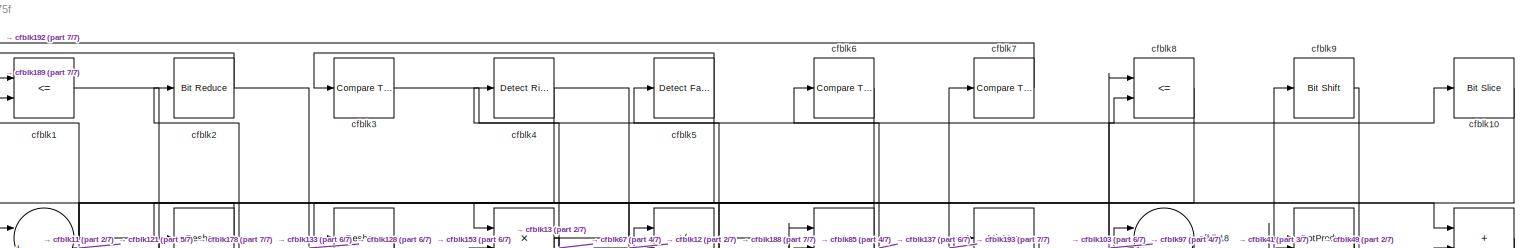
[diagram: root canvas - part 1/7, full width, top band]
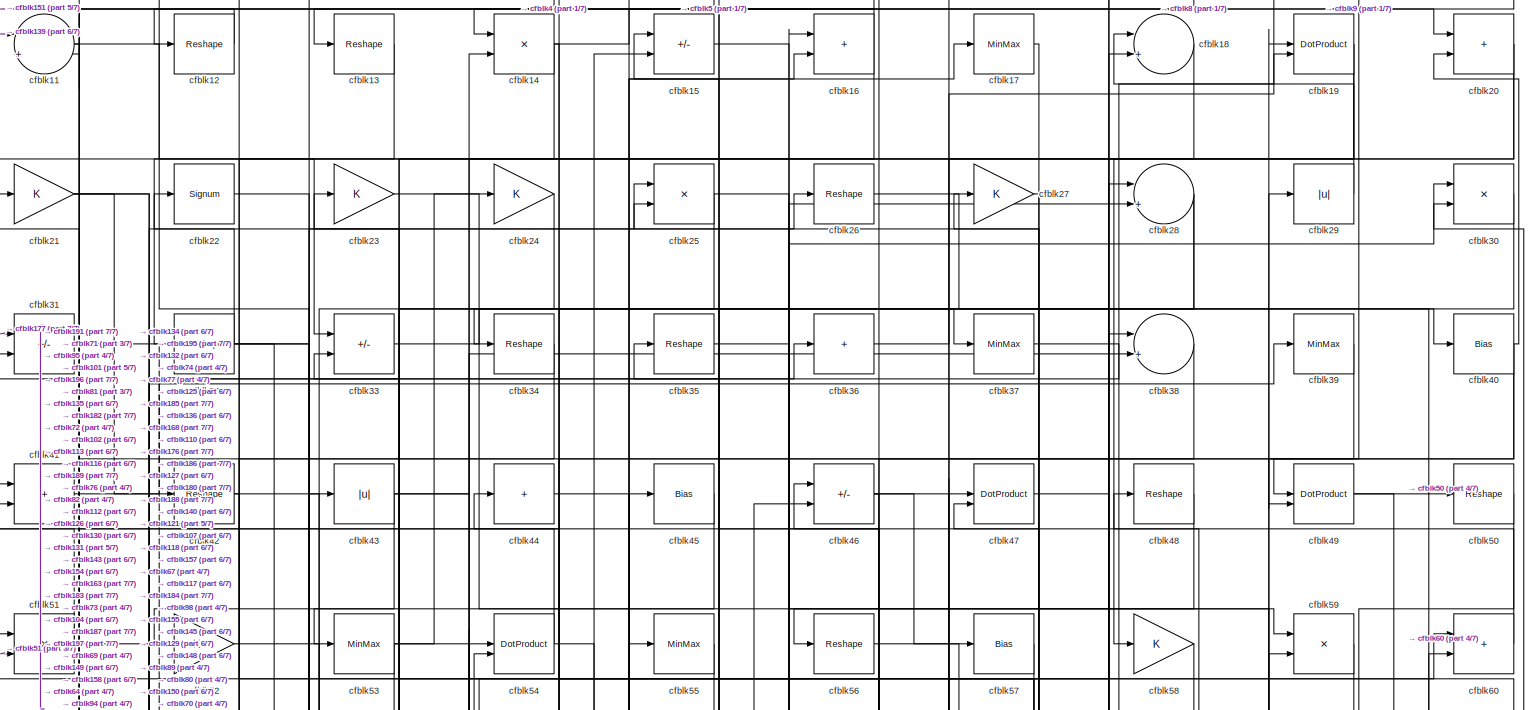
[diagram: root canvas - part 2/7, full width, top band]
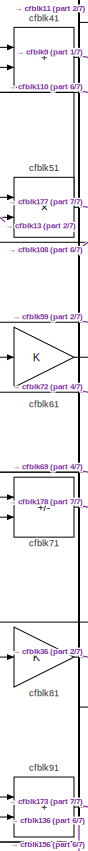
[diagram: root canvas - part 3/7, middle left region]
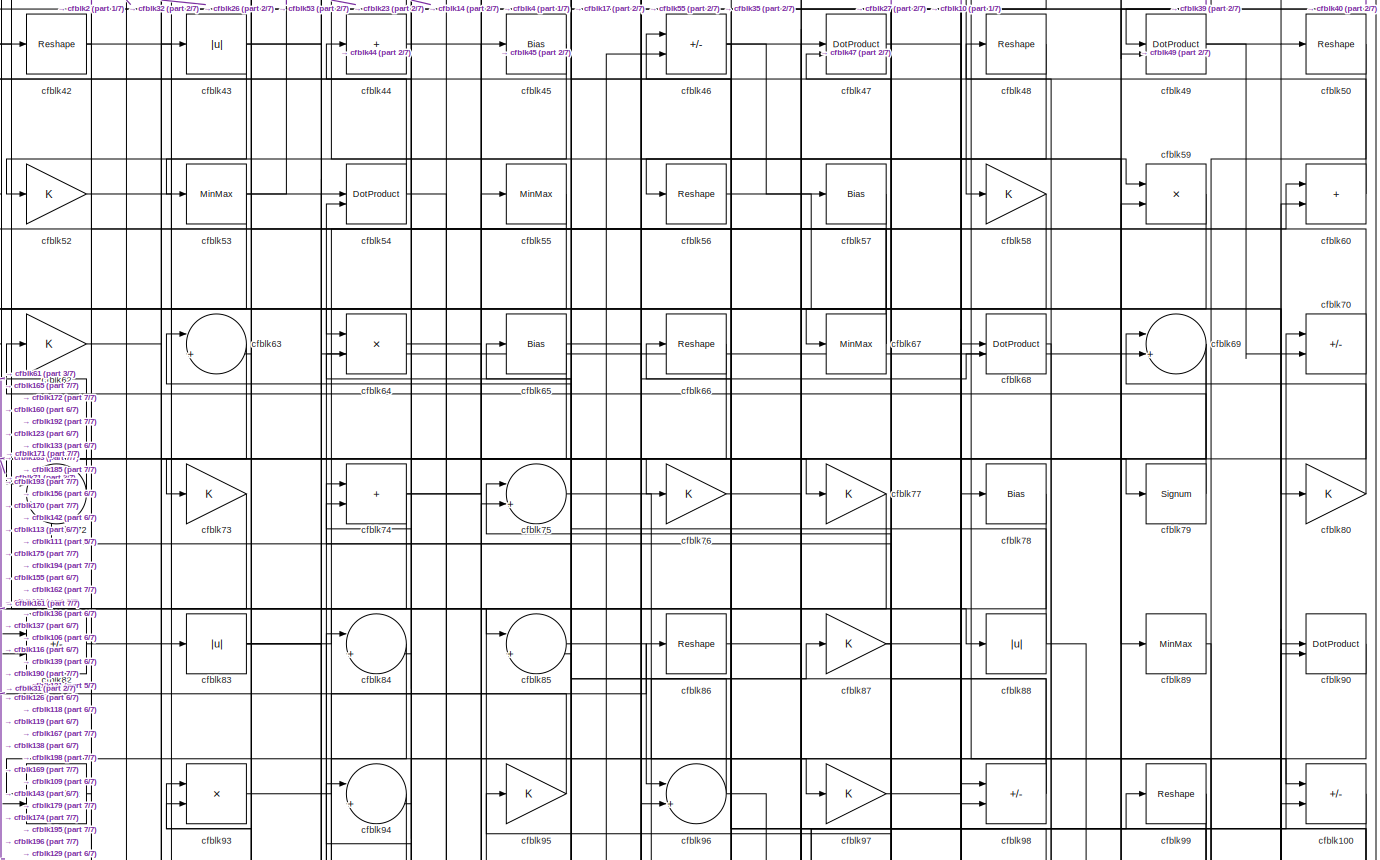
[diagram: root canvas - part 4/7, full width, middle band]
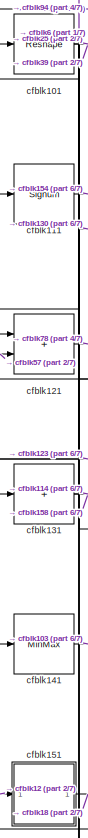
[diagram: root canvas - part 5/7, middle left region]
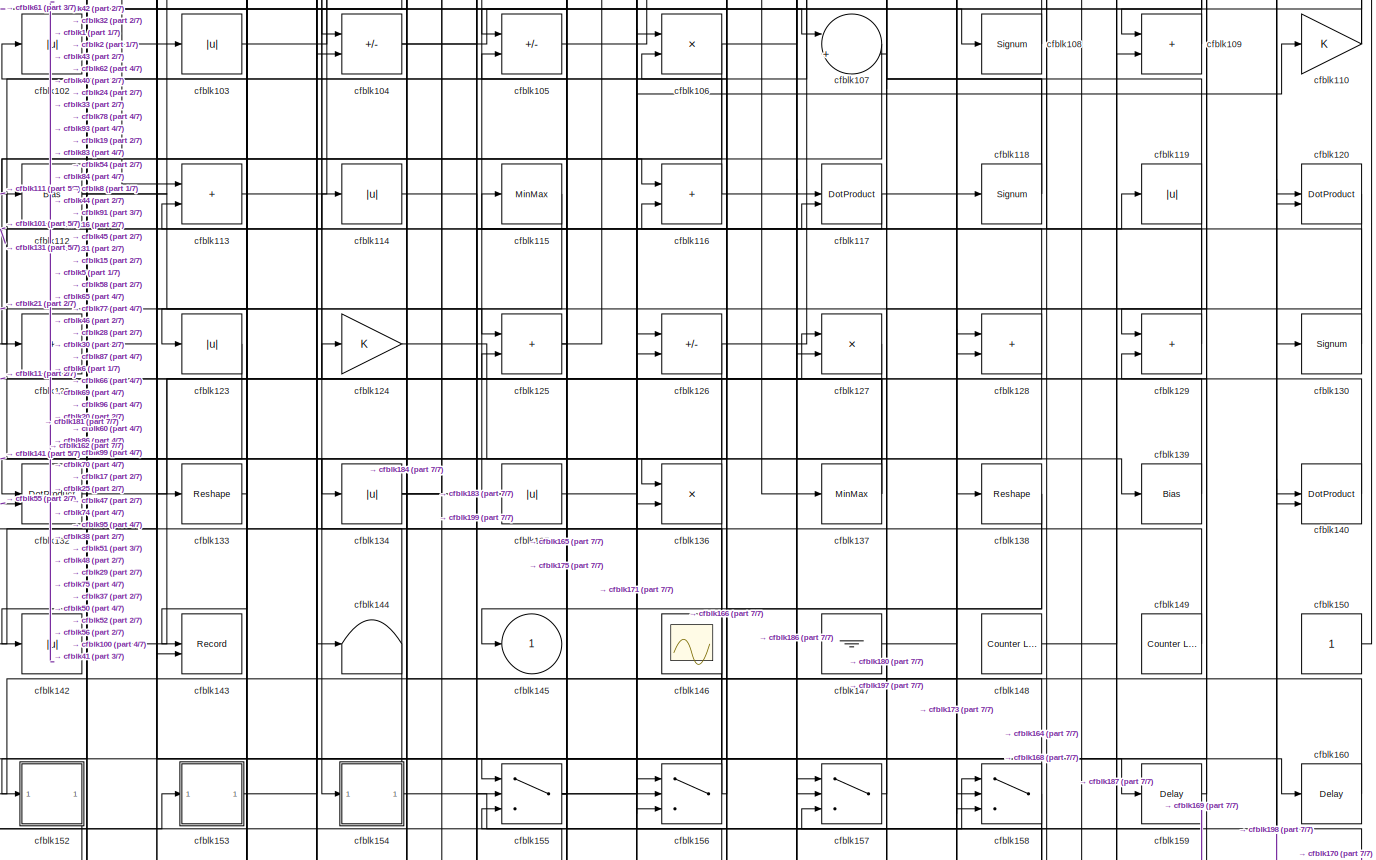
[diagram: root canvas - part 6/7, full width, middle band]
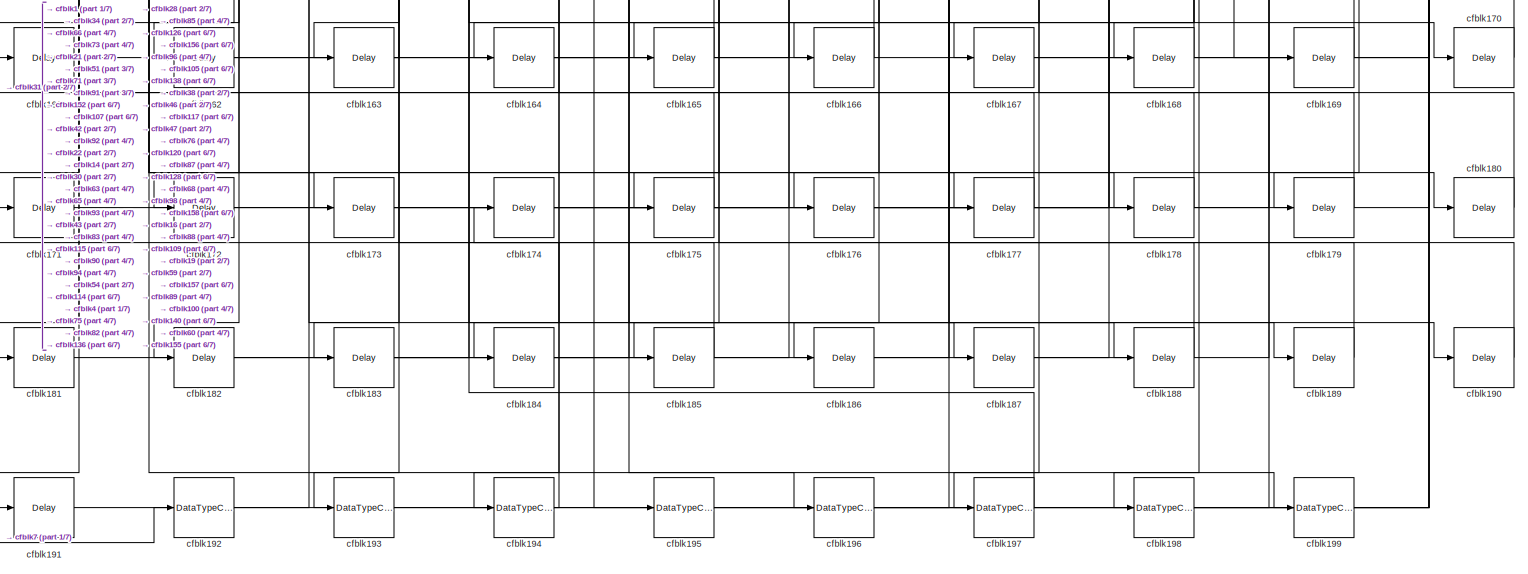
[diagram: root canvas - part 7/7, full width, bottom band]
MODEL slx_20db04f2175f
KIND model
CONFIG AbsTol = auto
CONFIG EnableMultiTasking = off
CONFIG FixedStep = auto
CONFIG MaxStep = auto
CONFIG MinStep = auto
CONFIG RelTol = 1e-3
CONFIG SampleTimeConstraint = Unconstrained
CONFIG SolverName = VariableStepAuto
CONFIG StartTime = 0.0
CONFIG StopTime = 10.0
BLOCK [RelationalOperator] cfblk1
  InputSameDT = off
  Operator = <=
  OutDataTypeStr = boolean
BLOCK [Reference] cfblk10  REF=hdlsllib/Logic and Bit
Operations/Bit Slice
  SourceBlock = hdlsllib/Logic and Bit\nOperations/Bit Slice
  SourceType = Bit Slice
BLOCK [Sum] cfblk100
  IconShape = rectangular
  Inputs = +-
BLOCK [Reshape] cfblk101
BLOCK [Abs] cfblk102
  SaturateOnIntegerOverflow = off
BLOCK [Abs] cfblk103
  SaturateOnIntegerOverflow = off
BLOCK [Sum] cfblk104
  IconShape = rectangular
  Inputs = +-
BLOCK [Sum] cfblk105
  IconShape = rectangular
  Inputs = +-
BLOCK [Product] cfblk106
  Inputs = */
  RndMeth = Zero
  SaturateOnIntegerOverflow = on
BLOCK [Sum] cfblk107
  Inputs = |++
BLOCK [Signum] cfblk108
BLOCK [Sum] cfblk109
  IconShape = rectangular
BLOCK [Sum] cfblk11
  Inputs = |++
BLOCK [Gain] cfblk110
BLOCK [Signum] cfblk111
BLOCK [Bias] cfblk112
  Bias = 0.0
  SaturateOnIntegerOverflow = off
BLOCK [Sum] cfblk113
  IconShape = rectangular
BLOCK [Abs] cfblk114
  SaturateOnIntegerOverflow = off
BLOCK [MinMax] cfblk115
BLOCK [Sum] cfblk116
  IconShape = rectangular
BLOCK [DotProduct] cfblk117
  OutDataTypeStr = Inherit: Inherit via internal rule
BLOCK [Signum] cfblk118
BLOCK [Abs] cfblk119
  SaturateOnIntegerOverflow = off
BLOCK [Reshape] cfblk12
BLOCK [DotProduct] cfblk120
  OutDataTypeStr = Inherit: Inherit via internal rule
BLOCK [Sum] cfblk121
  IconShape = rectangular
BLOCK [Sum] cfblk122
  IconShape = rectangular
  Inputs = +
BLOCK [Abs] cfblk123
  SaturateOnIntegerOverflow = off
BLOCK [Gain] cfblk124
BLOCK [Sum] cfblk125
  IconShape = rectangular
BLOCK [Sum] cfblk126
  IconShape = rectangular
  Inputs = +-
BLOCK [Product] cfblk127
  Inputs = */
  RndMeth = Zero
  SaturateOnIntegerOverflow = on
BLOCK [Sum] cfblk128
  IconShape = rectangular
BLOCK [Sum] cfblk129
  IconShape = rectangular
BLOCK [Reshape] cfblk13
BLOCK [Signum] cfblk130
BLOCK [Sum] cfblk131
  IconShape = rectangular
  Inputs = +
BLOCK [DotProduct] cfblk132
  OutDataTypeStr = Inherit: Inherit via internal rule
BLOCK [Reshape] cfblk133
BLOCK [Abs] cfblk134
  SaturateOnIntegerOverflow = off
BLOCK [Abs] cfblk135
  SaturateOnIntegerOverflow = off
BLOCK [Product] cfblk136
  Inputs = */
  RndMeth = Zero
  SaturateOnIntegerOverflow = on
BLOCK [MinMax] cfblk137
BLOCK [Reshape] cfblk138
BLOCK [Bias] cfblk139
  Bias = 0.0
  SaturateOnIntegerOverflow = off
BLOCK [Product] cfblk14
  Inputs = */
  RndMeth = Zero
  SaturateOnIntegerOverflow = on
BLOCK [DotProduct] cfblk140
  OutDataTypeStr = Inherit: Inherit via internal rule
BLOCK [MinMax] cfblk141
BLOCK [Abs] cfblk142
  SaturateOnIntegerOverflow = off
BLOCK [Record] cfblk143
  CompatibilityTag = XY
  FileSettingsInternal = {"entries":[{"content":{"excelSettings":{"content":{},"type":"Streamout.ExcelSettings"}},"type":"Streamout.FileSettingStorage","uuid":""}],"packageUris":["http:\/\/schema.mathworks.com\/mf0\/streamout_blocks\/R2020a"],"version":"1.0"}
  Layout = [1 1]
  SignalsInternal = {"entries":[{"content":{"signals":[{"content":{"blockPath":[],"dimensions":[1],"domain":"","lineColor":"#a2142f","plots":[1],"port":1,"signalID":6360,"signalName":"XY Graph:1"},"type":"RecordBlkView.Signal","uuid":""},{"content":{"blockPath":[],"dimensions":[1],"domain":"","lineColor":"#139fff","plots":[1],"port":2,"signalID":6363,"signalName":"XY Graph:2"},"type":"RecordBlkView.Signal","uuid":""}...<+146ch>
  VisualizationBindings = {"xyplotplugin":{"info":[{"series":[{"bindingParametersList":[{"parameter":"X-Axis","signalID":6360,"signalName":"XY Graph:1"},{"parameter":"Y-Axis","signalID":6363,"signalName":"XY Graph:2"}],"seriesID":60653}],"subplotID":1}]}}
  st = -1
BLOCK [Terminator] cfblk144
BLOCK [Outport] cfblk145
  VectorParamsAs1DForOutWhenUnconnected = off
BLOCK [Scope] cfblk146
  Floating = on
  NumInputPorts = 1
  ScopeSpecificationString = Simulink.scopes.TimeScopeBlockCfg('CurrentConfiguration', extmgr.ConfigurationSet(extmgr.Configuration('Core','General UI',true,'FigureColor',[0.156862745098039 0.156862745098039 0.156862745098039]),extmgr.Configuration('Core','Source UI',true),extmgr.Configuration('Sources','WiredSimulink',true,'DataLoggingVariableName','ScopeData1','DataLoggingSaveFormat','StructureWithTime','DataLoggingLimitDat...<+2713ch>
BLOCK [Ground] cfblk147
BLOCK [Reference] cfblk148  REF=hdlsllib/Sources/Counter
Limited
  SourceBlock = hdlsllib/Sources/Counter\nLimited
  SourceType = Counter Limited
BLOCK [Reference] cfblk149  REF=hdlsllib/Sources/Counter
Limited
  SourceBlock = hdlsllib/Sources/Counter\nLimited
  SourceType = Counter Limited
BLOCK [Sum] cfblk15
  IconShape = rectangular
  Inputs = +-
BLOCK [Constant] cfblk150
  SampleTime = -1
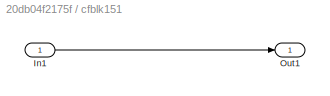
BLOCK [SubSystem] cfblk151
  LibrarySourceBlock = hdlsllib/Ports &\nSubsystems/Subsystem
BLOCK [Inport] cfblk151/In1
BLOCK [Outport] cfblk151/Out1
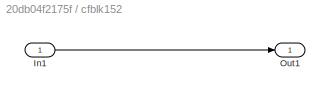
BLOCK [SubSystem] cfblk152
  LibrarySourceBlock = hdlsllib/Ports &\nSubsystems/Subsystem
BLOCK [Inport] cfblk152/In1
BLOCK [Outport] cfblk152/Out1
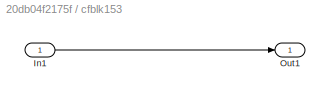
BLOCK [SubSystem] cfblk153
  LibrarySourceBlock = hdlsllib/Ports &\nSubsystems/Subsystem
BLOCK [Inport] cfblk153/In1
BLOCK [Outport] cfblk153/Out1
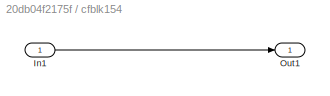
BLOCK [SubSystem] cfblk154
  LibrarySourceBlock = hdlsllib/Ports &\nSubsystems/Subsystem
BLOCK [Inport] cfblk154/In1
BLOCK [Outport] cfblk154/Out1
BLOCK [Switch] cfblk155
  InputSameDT = off
  SaturateOnIntegerOverflow = off
BLOCK [Switch] cfblk156
  InputSameDT = off
  SaturateOnIntegerOverflow = off
BLOCK [Switch] cfblk157
  InputSameDT = off
  SaturateOnIntegerOverflow = off
BLOCK [Switch] cfblk158
  InputSameDT = off
  SaturateOnIntegerOverflow = off
BLOCK [Delay] cfblk159
  InputPortMap = u0
  SampleTime = 1
BLOCK [Sum] cfblk16
  IconShape = rectangular
BLOCK [Delay] cfblk160
  InputPortMap = u0
  SampleTime = 1
BLOCK [Delay] cfblk161
  InputPortMap = u0
  SampleTime = 1
BLOCK [Delay] cfblk162
  InputPortMap = u0
  SampleTime = 1
BLOCK [Delay] cfblk163
  InputPortMap = u0
  SampleTime = 1
BLOCK [Delay] cfblk164
  InputPortMap = u0
  SampleTime = 1
BLOCK [Delay] cfblk165
  InputPortMap = u0
  SampleTime = 1
BLOCK [Delay] cfblk166
  InputPortMap = u0
  SampleTime = 1
BLOCK [Delay] cfblk167
  InputPortMap = u0
  SampleTime = 1
BLOCK [Delay] cfblk168
  InputPortMap = u0
  SampleTime = 1
BLOCK [Delay] cfblk169
  InputPortMap = u0
  SampleTime = 1
BLOCK [MinMax] cfblk17
BLOCK [Delay] cfblk170
  InputPortMap = u0
  SampleTime = 1
BLOCK [Delay] cfblk171
  InputPortMap = u0
  SampleTime = 1
BLOCK [Delay] cfblk172
  InputPortMap = u0
  SampleTime = 1
BLOCK [Delay] cfblk173
  InputPortMap = u0
  SampleTime = 1
BLOCK [Delay] cfblk174
  InputPortMap = u0
  SampleTime = 1
BLOCK [Delay] cfblk175
  InputPortMap = u0
  SampleTime = 1
BLOCK [Delay] cfblk176
  InputPortMap = u0
  SampleTime = 1
BLOCK [Delay] cfblk177
  InputPortMap = u0
  SampleTime = 1
BLOCK [Delay] cfblk178
  InputPortMap = u0
  SampleTime = 1
BLOCK [Delay] cfblk179
  InputPortMap = u0
  SampleTime = 1
BLOCK [Sum] cfblk18
  Inputs = |++
BLOCK [Delay] cfblk180
  InputPortMap = u0
  SampleTime = 1
BLOCK [Delay] cfblk181
  InputPortMap = u0
  SampleTime = 1
BLOCK [Delay] cfblk182
  InputPortMap = u0
  SampleTime = 1
BLOCK [Delay] cfblk183
  InputPortMap = u0
  SampleTime = 1
BLOCK [Delay] cfblk184
  InputPortMap = u0
  SampleTime = 1
BLOCK [Delay] cfblk185
  InputPortMap = u0
  SampleTime = 1
BLOCK [Delay] cfblk186
  InputPortMap = u0
  SampleTime = 1
BLOCK [Delay] cfblk187
  InputPortMap = u0
  SampleTime = 1
BLOCK [Delay] cfblk188
  InputPortMap = u0
  SampleTime = 1
BLOCK [Delay] cfblk189
  InputPortMap = u0
  SampleTime = 1
BLOCK [DotProduct] cfblk19
  OutDataTypeStr = Inherit: Inherit via internal rule
BLOCK [Delay] cfblk190
  InputPortMap = u0
  SampleTime = 1
BLOCK [Delay] cfblk191
  InputPortMap = u0
  SampleTime = 1
BLOCK [DataTypeConversion] cfblk192
  OutDataTypeStr = uint8
  RndMeth = Floor
  SaturateOnIntegerOverflow = off
BLOCK [DataTypeConversion] cfblk193
  OutDataTypeStr = uint8
  RndMeth = Floor
  SaturateOnIntegerOverflow = off
BLOCK [DataTypeConversion] cfblk194
  OutDataTypeStr = uint8
  RndMeth = Floor
  SaturateOnIntegerOverflow = off
BLOCK [DataTypeConversion] cfblk195
  OutDataTypeStr = uint8
  RndMeth = Floor
  SaturateOnIntegerOverflow = off
BLOCK [DataTypeConversion] cfblk196
  OutDataTypeStr = uint8
  RndMeth = Floor
  SaturateOnIntegerOverflow = off
BLOCK [DataTypeConversion] cfblk197
  OutDataTypeStr = uint8
  RndMeth = Floor
  SaturateOnIntegerOverflow = off
BLOCK [DataTypeConversion] cfblk198
  OutDataTypeStr = uint8
  RndMeth = Floor
  SaturateOnIntegerOverflow = off
BLOCK [DataTypeConversion] cfblk199
  OutDataTypeStr = uint8
  RndMeth = Floor
  SaturateOnIntegerOverflow = off
BLOCK [Reference] cfblk2  REF=hdlsllib/Logic and Bit
Operations/Bit Reduce
  SourceBlock = hdlsllib/Logic and Bit\nOperations/Bit Reduce
  SourceType = Bit Reduce
BLOCK [Sum] cfblk20
  IconShape = rectangular
BLOCK [Gain] cfblk21
BLOCK [Signum] cfblk22
BLOCK [Gain] cfblk23
BLOCK [Gain] cfblk24
BLOCK [Product] cfblk25
  Inputs = */
  RndMeth = Zero
  SaturateOnIntegerOverflow = on
BLOCK [Reshape] cfblk26
BLOCK [Gain] cfblk27
BLOCK [Sum] cfblk28
  Inputs = |++
BLOCK [Abs] cfblk29
  SaturateOnIntegerOverflow = off
BLOCK [Reference] cfblk3  REF=hdlsllib/Logic and Bit
Operations/Compare
To Constant
  SourceBlock = hdlsllib/Logic and Bit\nOperations/Compare\nTo Constant
  SourceType = Compare To Constant
BLOCK [Product] cfblk30
  Inputs = */
  RndMeth = Zero
  SaturateOnIntegerOverflow = on
BLOCK [Sum] cfblk31
  IconShape = rectangular
  Inputs = +-
BLOCK [Reshape] cfblk32
BLOCK [Sum] cfblk33
  IconShape = rectangular
  Inputs = +-
BLOCK [Reshape] cfblk34
BLOCK [Reshape] cfblk35
BLOCK [Sum] cfblk36
  IconShape = rectangular
  Inputs = +
BLOCK [MinMax] cfblk37
BLOCK [Sum] cfblk38
  Inputs = |++
BLOCK [MinMax] cfblk39
BLOCK [Reference] cfblk4  REF=hdlsllib/Logic and Bit
Operations/Detect Rise
Positive
  SourceBlock = hdlsllib/Logic and Bit\nOperations/Detect Rise\nPositive
  SourceType = Detect Rise Positive
BLOCK [Bias] cfblk40
  Bias = 0.0
  SaturateOnIntegerOverflow = off
BLOCK [Sum] cfblk41
  IconShape = rectangular
BLOCK [Reshape] cfblk42
BLOCK [Abs] cfblk43
  SaturateOnIntegerOverflow = off
BLOCK [Sum] cfblk44
  IconShape = rectangular
  Inputs = +
BLOCK [Bias] cfblk45
  Bias = 0.0
  SaturateOnIntegerOverflow = off
BLOCK [Sum] cfblk46
  IconShape = rectangular
  Inputs = +-
BLOCK [DotProduct] cfblk47
  OutDataTypeStr = Inherit: Inherit via internal rule
BLOCK [Reshape] cfblk48
BLOCK [DotProduct] cfblk49
  OutDataTypeStr = Inherit: Inherit via internal rule
BLOCK [Reference] cfblk5  REF=hdlsllib/Logic and Bit
Operations/Detect Fall
Negative
  SourceBlock = hdlsllib/Logic and Bit\nOperations/Detect Fall\nNegative
  SourceType = Detect Fall Negative
BLOCK [Reshape] cfblk50
BLOCK [Product] cfblk51
  Inputs = */
  RndMeth = Zero
  SaturateOnIntegerOverflow = on
BLOCK [Gain] cfblk52
BLOCK [MinMax] cfblk53
BLOCK [DotProduct] cfblk54
  OutDataTypeStr = Inherit: Inherit via internal rule
BLOCK [MinMax] cfblk55
BLOCK [Reshape] cfblk56
BLOCK [Bias] cfblk57
  Bias = 0.0
  SaturateOnIntegerOverflow = off
BLOCK [Gain] cfblk58
BLOCK [Product] cfblk59
  Inputs = */
  RndMeth = Zero
  SaturateOnIntegerOverflow = on
BLOCK [Reference] cfblk6  REF=hdlsllib/Logic and Bit
Operations/Compare
To Zero
  SourceBlock = hdlsllib/Logic and Bit\nOperations/Compare\nTo Zero
  SourceType = Compare To Zero
BLOCK [Sum] cfblk60
  IconShape = rectangular
BLOCK [Gain] cfblk61
BLOCK [Gain] cfblk62
BLOCK [Sum] cfblk63
  Inputs = |++
BLOCK [Product] cfblk64
  Inputs = */
  RndMeth = Zero
  SaturateOnIntegerOverflow = on
BLOCK [Bias] cfblk65
  Bias = 0.0
  SaturateOnIntegerOverflow = off
BLOCK [Reshape] cfblk66
BLOCK [MinMax] cfblk67
BLOCK [DotProduct] cfblk68
  OutDataTypeStr = Inherit: Inherit via internal rule
BLOCK [Sum] cfblk69
  Inputs = |++
BLOCK [Reference] cfblk7  REF=hdlsllib/Logic and Bit
Operations/Compare
To Constant
  SourceBlock = hdlsllib/Logic and Bit\nOperations/Compare\nTo Constant
  SourceType = Compare To Constant
BLOCK [Sum] cfblk70
  IconShape = rectangular
  Inputs = +-
BLOCK [Sum] cfblk71
  IconShape = rectangular
  Inputs = +-
BLOCK [Sum] cfblk72
  Inputs = |++
BLOCK [Gain] cfblk73
BLOCK [Sum] cfblk74
  IconShape = rectangular
BLOCK [Sum] cfblk75
  Inputs = |++
BLOCK [Gain] cfblk76
BLOCK [Gain] cfblk77
BLOCK [Bias] cfblk78
  Bias = 0.0
  SaturateOnIntegerOverflow = off
BLOCK [Signum] cfblk79
BLOCK [RelationalOperator] cfblk8
  InputSameDT = off
  Operator = <=
  OutDataTypeStr = boolean
BLOCK [Gain] cfblk80
BLOCK [Gain] cfblk81
BLOCK [Sum] cfblk82
  IconShape = rectangular
  Inputs = +-
BLOCK [Abs] cfblk83
  SaturateOnIntegerOverflow = off
BLOCK [Sum] cfblk84
  Inputs = |++
BLOCK [Sum] cfblk85
  Inputs = |++
BLOCK [Reshape] cfblk86
BLOCK [Gain] cfblk87
BLOCK [Abs] cfblk88
  SaturateOnIntegerOverflow = off
BLOCK [MinMax] cfblk89
BLOCK [Reference] cfblk9  REF=hdlsllib/Logic and Bit
Operations/Bit Shift
  SourceBlock = hdlsllib/Logic and Bit\nOperations/Bit Shift
  SourceType = Bit Shift
BLOCK [DotProduct] cfblk90
  OutDataTypeStr = Inherit: Inherit via internal rule
BLOCK [Sum] cfblk91
  IconShape = rectangular
BLOCK [DotProduct] cfblk92
  OutDataTypeStr = Inherit: Inherit via internal rule
BLOCK [Product] cfblk93
  Inputs = */
  RndMeth = Zero
  SaturateOnIntegerOverflow = on
BLOCK [Sum] cfblk94
  Inputs = |++
BLOCK [Gain] cfblk95
BLOCK [Sum] cfblk96
  Inputs = |++
BLOCK [Gain] cfblk97
BLOCK [Sum] cfblk98
  IconShape = rectangular
  Inputs = +-
BLOCK [Reshape] cfblk99
LINE cfblk100:1 -> cfblk129:1
NET cfblk101:1 -> cfblk25:2, cfblk39:1
LINE cfblk102:1 -> cfblk43:1
LINE cfblk103:1 -> cfblk8:1
NET cfblk104:1 -> cfblk107:1, cfblk16:2
LINE cfblk105:1 -> cfblk87:1
NET cfblk106:1 -> cfblk122:1, cfblk60:1
LINE cfblk107:1 -> cfblk162:1
LINE cfblk108:1 -> cfblk51:1
LINE cfblk109:1 -> cfblk75:1
LINE cfblk10:1 -> cfblk85:1
NET cfblk110:1 -> cfblk41:1, cfblk46:1
LINE cfblk111:1 -> cfblk154:1
NET cfblk112:1 -> cfblk144:1, cfblk40:1
LINE cfblk113:1 -> cfblk86:1
LINE cfblk114:1 -> cfblk199:1
LINE cfblk115:1 -> cfblk184:1
NET cfblk116:1 -> cfblk102:1, cfblk99:1
NET cfblk117:1 -> cfblk116:2, cfblk38:1
NET cfblk118:1 -> cfblk25:1, cfblk74:2
NET cfblk119:1 -> cfblk158:3, cfblk95:1
NET cfblk11:1 -> cfblk33:1, cfblk71:1
LINE cfblk120:1 -> cfblk197:1
LINE cfblk121:1 -> cfblk78:1
LINE cfblk122:1 -> cfblk159:1
LINE cfblk123:1 -> cfblk141:1
LINE cfblk124:1 -> cfblk156:2
NET cfblk125:1 -> cfblk15:1, cfblk46:2
NET cfblk126:1 -> cfblk152:1, cfblk70:1
LINE cfblk127:1 -> cfblk132:1
NET cfblk128:1 -> cfblk113:2, cfblk134:1
LINE cfblk129:1 -> cfblk48:1
LINE cfblk12:1 -> cfblk151:1
LINE cfblk130:1 -> cfblk101:1
NET cfblk131:1 -> cfblk114:1, cfblk158:2
LINE cfblk132:1 -> cfblk45:1
LINE cfblk133:1 -> cfblk93:1
NET cfblk134:1 -> cfblk117:2, cfblk119:1, cfblk15:2
LINE cfblk135:1 -> cfblk28:2
NET cfblk136:1 -> cfblk175:1, cfblk91:1
NET cfblk137:1 -> cfblk124:1, cfblk5:1, cfblk6:1
NET cfblk138:1 -> cfblk165:1, cfblk166:1
LINE cfblk139:1 -> cfblk11:1
LINE cfblk13:1 -> cfblk51:2
LINE cfblk140:1 -> cfblk106:2
LINE cfblk141:1 -> cfblk103:1
LINE cfblk142:1 -> cfblk84:1
LINE cfblk147:1 -> cfblk118:1
LINE cfblk148:1 -> cfblk29:1
LINE cfblk149:1 -> cfblk54:2
NET cfblk14:1 -> cfblk163:1, cfblk20:1, cfblk94:2
LINE cfblk150:1 -> cfblk30:1
LINE cfblk151/In1:1 -> cfblk151/Out1:1
LINE cfblk151:1 -> cfblk18:2
LINE cfblk152/In1:1 -> cfblk152/Out1:1
LINE cfblk152:1 -> cfblk181:1
LINE cfblk153/In1:1 -> cfblk153/Out1:1
LINE cfblk153:1 -> cfblk127:1
LINE cfblk154/In1:1 -> cfblk154/Out1:1
NET cfblk154:1 -> cfblk158:1, cfblk33:2
NET cfblk155:1 -> cfblk110:1, cfblk115:1, cfblk125:2, cfblk30:2, cfblk65:1
NET cfblk156:1 -> cfblk66:1, cfblk74:1, cfblk91:2
LINE cfblk157:1 -> cfblk47:2
NET cfblk158:1 -> cfblk164:1, cfblk168:1, cfblk44:1
LINE cfblk159:1 -> cfblk129:2
LINE cfblk15:1 -> cfblk136:2
LINE cfblk160:1 -> cfblk106:1
LINE cfblk161:1 -> cfblk75:2
LINE cfblk162:1 -> cfblk96:2
LINE cfblk163:1 -> cfblk93:2
LINE cfblk164:1 -> cfblk140:1
LINE cfblk165:1 -> cfblk82:1
LINE cfblk166:1 -> cfblk105:2
LINE cfblk167:1 -> cfblk60:2
LINE cfblk168:1 -> cfblk16:1
LINE cfblk169:1 -> cfblk157:1
NET cfblk16:1 -> cfblk14:1, cfblk53:1
LINE cfblk170:1 -> cfblk155:3
LINE cfblk171:1 -> cfblk156:1
LINE cfblk172:1 -> cfblk98:1
LINE cfblk173:1 -> cfblk128:1
LINE cfblk174:1 -> cfblk100:2
LINE cfblk175:1 -> cfblk94:1
LINE cfblk176:1 -> cfblk59:2
LINE cfblk177:1 -> cfblk31:1
LINE cfblk178:1 -> cfblk1:2
LINE cfblk179:1 -> cfblk68:1
LINE cfblk17:1 -> cfblk107:2
LINE cfblk180:1 -> cfblk157:3
LINE cfblk181:1 -> cfblk126:2
LINE cfblk182:1 -> cfblk14:2
LINE cfblk183:1 -> cfblk155:2
LINE cfblk184:1 -> cfblk28:1
LINE cfblk185:1 -> cfblk63:2
LINE cfblk186:1 -> cfblk117:1
LINE cfblk187:1 -> cfblk109:2
LINE cfblk188:1 -> cfblk47:1
LINE cfblk189:1 -> cfblk1:1
LINE cfblk18:1 -> cfblk32:1
LINE cfblk190:1 -> cfblk85:2
LINE cfblk191:1 -> cfblk19:1
LINE cfblk192:1 -> cfblk83:1
LINE cfblk193:1 -> cfblk7:1
LINE cfblk194:1 -> cfblk174:1
LINE cfblk195:1 -> cfblk90:1
LINE cfblk196:1 -> cfblk90:2
LINE cfblk197:1 -> cfblk54:1
LINE cfblk198:1 -> cfblk120:1
LINE cfblk199:1 -> cfblk120:2
NET cfblk19:1 -> cfblk104:2, cfblk52:1
LINE cfblk1:1 -> cfblk133:1
NET cfblk20:1 -> cfblk127:2, cfblk58:1
NET cfblk21:1 -> cfblk125:1, cfblk196:1, cfblk42:1
LINE cfblk22:1 -> cfblk189:1
LINE cfblk23:1 -> cfblk89:1
LINE cfblk24:1 -> cfblk143:1
NET cfblk25:1 -> cfblk157:2, cfblk34:1
LINE cfblk26:1 -> cfblk50:1
LINE cfblk27:1 -> cfblk67:1
NET cfblk28:1 -> cfblk104:1, cfblk185:1
LINE cfblk29:1 -> cfblk18:1
NET cfblk2:1 -> cfblk128:2, cfblk153:1
LINE cfblk30:1 -> cfblk183:1
LINE cfblk31:1 -> cfblk135:1
NET cfblk32:1 -> cfblk113:1, cfblk116:1, cfblk22:1, cfblk76:1
LINE cfblk33:1 -> cfblk37:1
LINE cfblk34:1 -> cfblk191:1
LINE cfblk35:1 -> cfblk59:1
LINE cfblk36:1 -> cfblk19:2
LINE cfblk37:1 -> cfblk155:1
LINE cfblk38:1 -> cfblk186:1
LINE cfblk39:1 -> cfblk64:1
LINE cfblk3:1 -> cfblk8:2
NET cfblk40:1 -> cfblk20:2, cfblk49:2, cfblk72:1
LINE cfblk41:1 -> cfblk9:1
NET cfblk42:1 -> cfblk126:1, cfblk182:1
NET cfblk43:1 -> cfblk112:1, cfblk187:1, cfblk38:2
LINE cfblk44:1 -> cfblk77:1
LINE cfblk45:1 -> cfblk73:1
NET cfblk46:1 -> cfblk176:1, cfblk180:1, cfblk57:1
LINE cfblk47:1 -> cfblk98:2
LINE cfblk48:1 -> cfblk56:1
NET cfblk49:1 -> cfblk70:2, cfblk80:1
NET cfblk4:1 -> cfblk12:1, cfblk188:1
LINE cfblk50:1 -> cfblk109:1
NET cfblk51:1 -> cfblk177:1, cfblk41:2
LINE cfblk52:1 -> cfblk130:1
NET cfblk53:1 -> cfblk131:1, cfblk24:1, cfblk69:2
NET cfblk54:1 -> cfblk195:1, cfblk21:1
LINE cfblk55:1 -> cfblk132:2
LINE cfblk56:1 -> cfblk140:2
LINE cfblk57:1 -> cfblk121:2
LINE cfblk58:1 -> cfblk145:1
LINE cfblk59:1 -> cfblk81:1
NET cfblk5:1 -> cfblk11:2, cfblk3:1
LINE cfblk60:1 -> cfblk35:1
LINE cfblk61:1 -> cfblk108:1
LINE cfblk62:1 -> cfblk160:1
LINE cfblk63:1 -> cfblk82:2
LINE cfblk64:1 -> cfblk79:1
NET cfblk65:1 -> cfblk193:1, cfblk68:2
LINE cfblk66:1 -> cfblk171:1
NET cfblk67:1 -> cfblk2:1, cfblk4:1
LINE cfblk68:1 -> cfblk198:1
NET cfblk69:1 -> cfblk136:1, cfblk71:2
LINE cfblk6:1 -> cfblk121:1
NET cfblk70:1 -> cfblk23:1, cfblk84:2
LINE cfblk71:1 -> cfblk178:1
LINE cfblk72:1 -> cfblk61:1
LINE cfblk73:1 -> cfblk161:1
NET cfblk74:1 -> cfblk17:1, cfblk55:1, cfblk92:2
LINE cfblk75:1 -> cfblk100:1
LINE cfblk76:1 -> cfblk190:1
LINE cfblk77:1 -> cfblk105:1
LINE cfblk78:1 -> cfblk123:1
LINE cfblk79:1 -> cfblk62:1
LINE cfblk7:1 -> cfblk192:1
LINE cfblk80:1 -> cfblk69:1
LINE cfblk81:1 -> cfblk36:1
LINE cfblk82:1 -> cfblk26:1
NET cfblk83:1 -> cfblk156:3, cfblk170:1, cfblk88:1
LINE cfblk84:1 -> cfblk92:1
LINE cfblk85:1 -> cfblk96:1
LINE cfblk86:1 -> cfblk139:1
NET cfblk87:1 -> cfblk138:1, cfblk167:1
NET cfblk88:1 -> cfblk169:1, cfblk64:2
LINE cfblk89:1 -> cfblk179:1
LINE cfblk8:1 -> cfblk13:1
LINE cfblk90:1 -> cfblk194:1
LINE cfblk91:1 -> cfblk173:1
LINE cfblk92:1 -> cfblk172:1
LINE cfblk93:1 -> cfblk97:1
LINE cfblk94:1 -> cfblk111:1
LINE cfblk95:1 -> cfblk31:2
NET cfblk96:1 -> cfblk137:1, cfblk63:1
LINE cfblk97:1 -> cfblk10:1
NET cfblk98:1 -> cfblk27:1, cfblk72:2
NET cfblk99:1 -> cfblk142:1, cfblk143:2
LINE cfblk9:1 -> cfblk49:1
note: NET lines group one-source signal fan-out (src -> all destinations, sorted); 1:1 wires keep LINE
